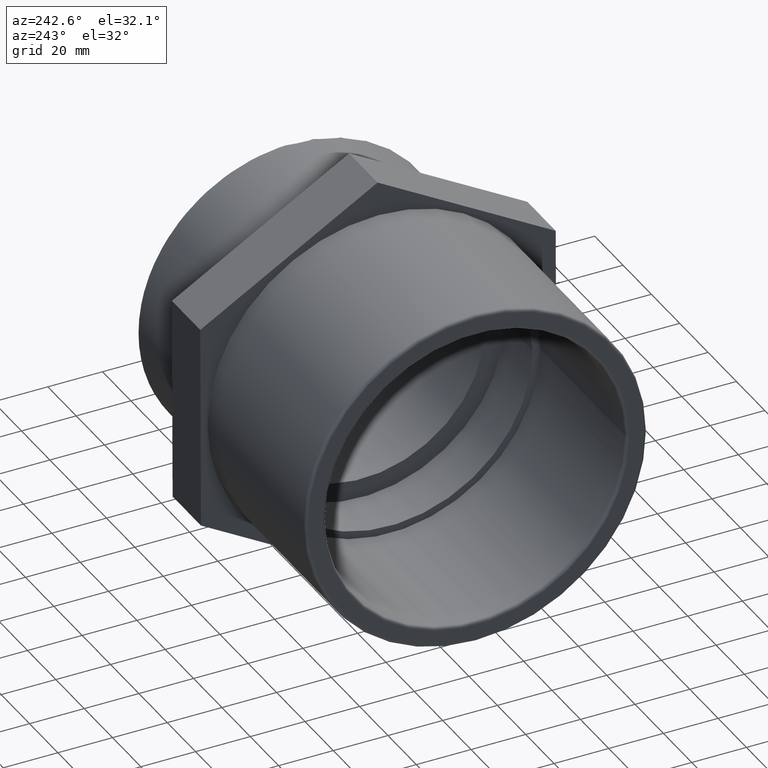
[diagram: clean part render]
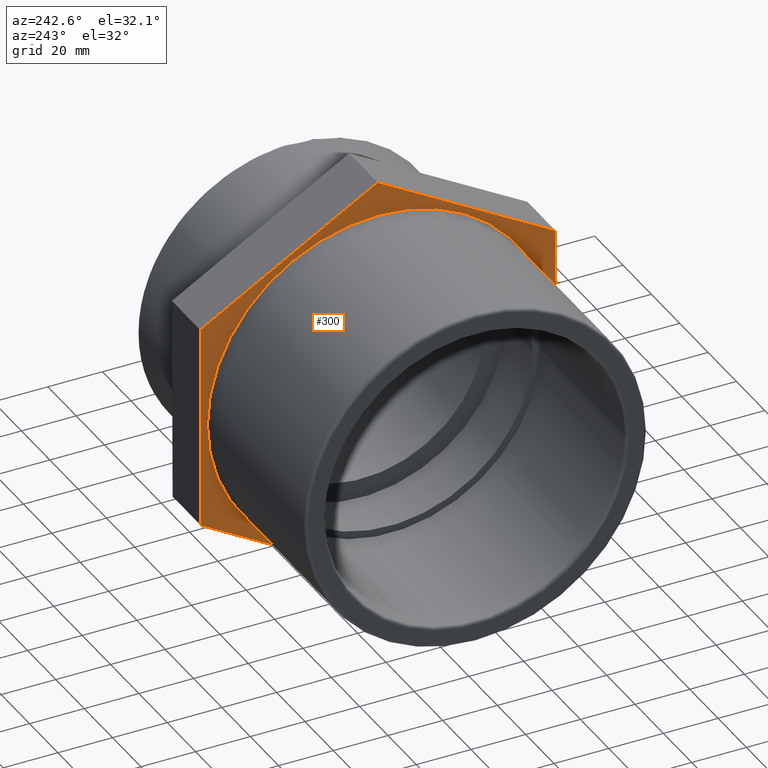
[diagram: same view with one face highlighted and labeled with its STEP entity id]
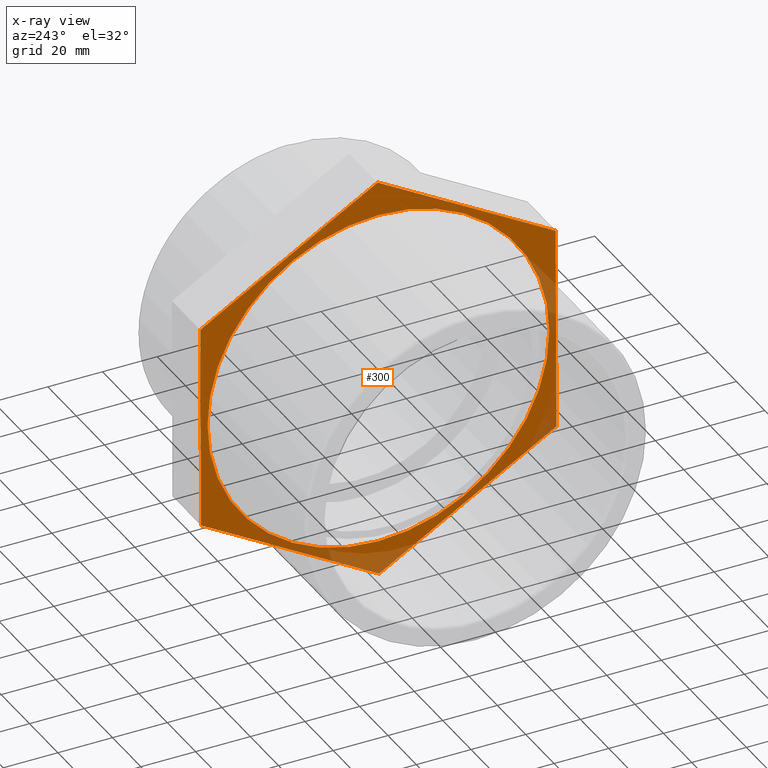
[diagram: x-ray of the same camera — body ghosted, the highlighted face saturated]
A machine part, auxiliary view. The second image highlights one B-rep face of the part: STEP entity #300.
The next image is the same camera in x-ray: the body ghosted, the highlighted face saturated — about 18% of this face is hidden behind the body in this view.
In plain terms, the highlighted planar face has unit normal (-1, -0, 0).
Its self-contained STEP definition (entity closure, byte-faithful):
#34=FACE_BOUND('',#109,.T.);
#46=CIRCLE('',#330,62.5);
#73=FACE_OUTER_BOUND('',#108,.T.);
#108=EDGE_LOOP('',(#261,#262,#263,#264,#265,#266));
#109=EDGE_LOOP('',(#267));
#112=LINE('',#436,#130);
#116=LINE('',#443,#134);
#119=LINE('',#449,#137);
#122=LINE('',#457,#140);
#125=LINE('',#461,#143);
#127=LINE('',#464,#145);
#130=VECTOR('',#344,75.0555349946514);
#134=VECTOR('',#350,75.0555349946514);
#137=VECTOR('',#355,75.0555349946514);
#140=VECTOR('',#360,75.0555349946514);
#143=VECTOR('',#365,75.0555349946513);
#145=VECTOR('',#369,75.0555349946515);
#148=VERTEX_POINT('',#433);
#149=VERTEX_POINT('',#435);
#151=VERTEX_POINT('',#441);
#153=VERTEX_POINT('',#447);
#156=VERTEX_POINT('',#454);
#157=VERTEX_POINT('',#456);
#169=VERTEX_POINT('',#497);
#174=EDGE_CURVE('',#148,#149,#112,.T.);
#178=EDGE_CURVE('',#151,#148,#116,.T.);
#181=EDGE_CURVE('',#153,#151,#119,.T.);
#184=EDGE_CURVE('',#156,#157,#122,.T.);
#187=EDGE_CURVE('',#149,#156,#125,.T.);
#189=EDGE_CURVE('',#157,#153,#127,.T.);
#201=EDGE_CURVE('',#169,#169,#46,.T.);
#261=ORIENTED_EDGE('',*,*,#174,.F.);
#262=ORIENTED_EDGE('',*,*,#178,.F.);
#263=ORIENTED_EDGE('',*,*,#181,.F.);
#264=ORIENTED_EDGE('',*,*,#189,.F.);
#265=ORIENTED_EDGE('',*,*,#184,.F.);
#266=ORIENTED_EDGE('',*,*,#187,.F.);
#267=ORIENTED_EDGE('',*,*,#201,.F.);
#279=PLANE('',#337);
#300=ADVANCED_FACE('',(#73,#34),#279,.T.);
#330=AXIS2_PLACEMENT_3D('',#498,#412,#413);
#337=AXIS2_PLACEMENT_3D('',#507,#426,#427);
#344=DIRECTION('',(2.43778272755134E-18,-0.00361927392861149,-0.999993450406666));
#350=DIRECTION('',(5.84531452177392E-16,-0.867829368634533,-0.4968623420379));
#355=DIRECTION('',(5.82093669449841E-16,-0.864210094705921,0.503131108368766));
#360=DIRECTION('',(-5.84531452177392E-16,0.867829368634534,0.496862342037899));
#365=DIRECTION('',(-5.8209366944984E-16,0.864210094705921,-0.503131108368767));
#369=DIRECTION('',(-2.4377827275519E-18,0.00361927392861232,0.999993450406666));
#412=DIRECTION('center_axis',(-1.,-6.73555739531044E-16,0.));
#413=DIRECTION('ref_axis',(0.,0.,1.));
#426=DIRECTION('center_axis',(-1.,-6.73555739531044E-16,0.));
#427=DIRECTION('ref_axis',(0.,0.,1.));
#433=CARTESIAN_POINT('',(4.00000000000001,-64.8637510059312,37.7627745110697));
#435=CARTESIAN_POINT('',(4.00000000000001,-65.1353975469354,-37.29226890035));
#436=CARTESIAN_POINT('',(4.00000000000001,-64.8637510059312,37.7627745110697));
#441=CARTESIAN_POINT('',(3.99999999999997,0.271646541004182,75.0550434114197));
#443=CARTESIAN_POINT('',(3.99999999999997,0.271646541004182,75.0550434114197));
#447=CARTESIAN_POINT('',(3.99999999999992,65.1353975469354,37.2922689003501));
#449=CARTESIAN_POINT('',(3.99999999999992,65.1353975469354,37.2922689003501));
#454=CARTESIAN_POINT('',(3.99999999999997,-0.271646541004241,-75.0550434114197));
#456=CARTESIAN_POINT('',(3.99999999999992,64.8637510059312,-37.7627745110697));
#457=CARTESIAN_POINT('',(3.99999999999997,-0.271646541004241,-75.0550434114197));
#461=CARTESIAN_POINT('',(4.00000000000001,-65.1353975469354,-37.29226890035));
#464=CARTESIAN_POINT('',(3.99999999999992,64.8637510059312,-37.7627745110697));
#497=CARTESIAN_POINT('',(4.00000000000002,-62.5,0.));
#498=CARTESIAN_POINT('Origin',(3.99999999999997,1.46345292498108E-14,0.));
#507=CARTESIAN_POINT('Origin',(4.00000000000002,-62.5,0.));